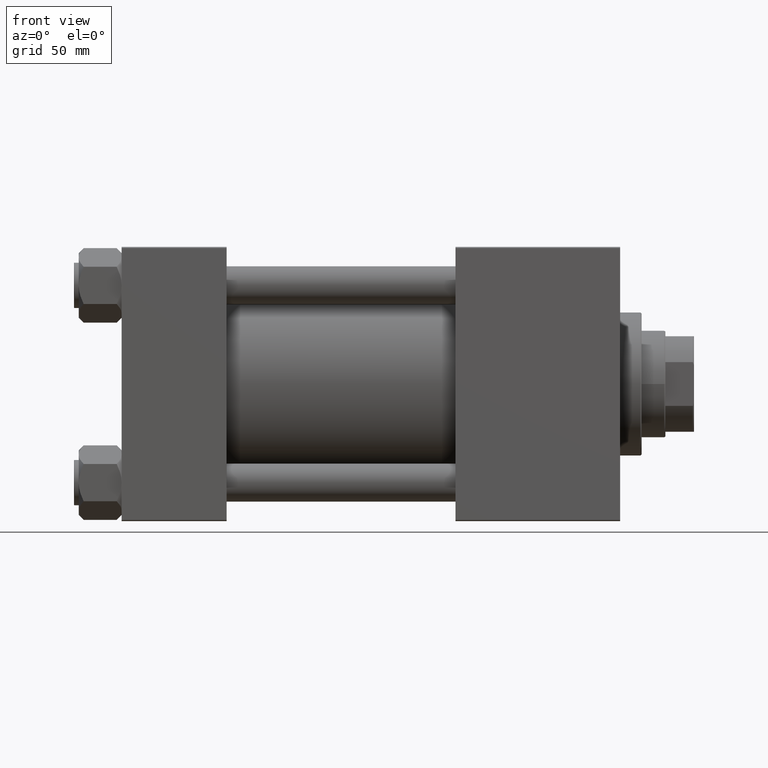
[diagram: clean part render]
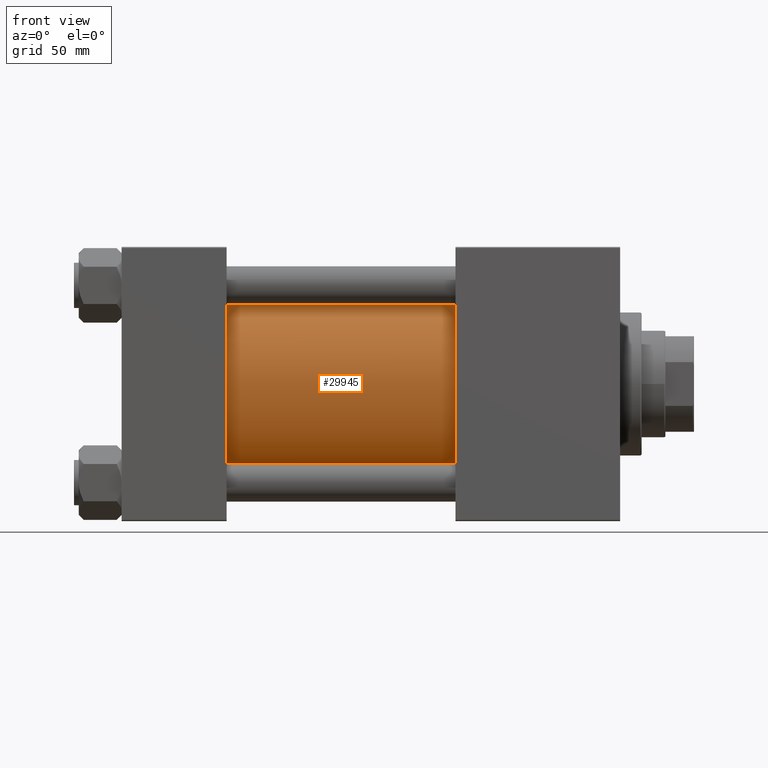
[diagram: same view with one face highlighted and labeled with its STEP entity id]
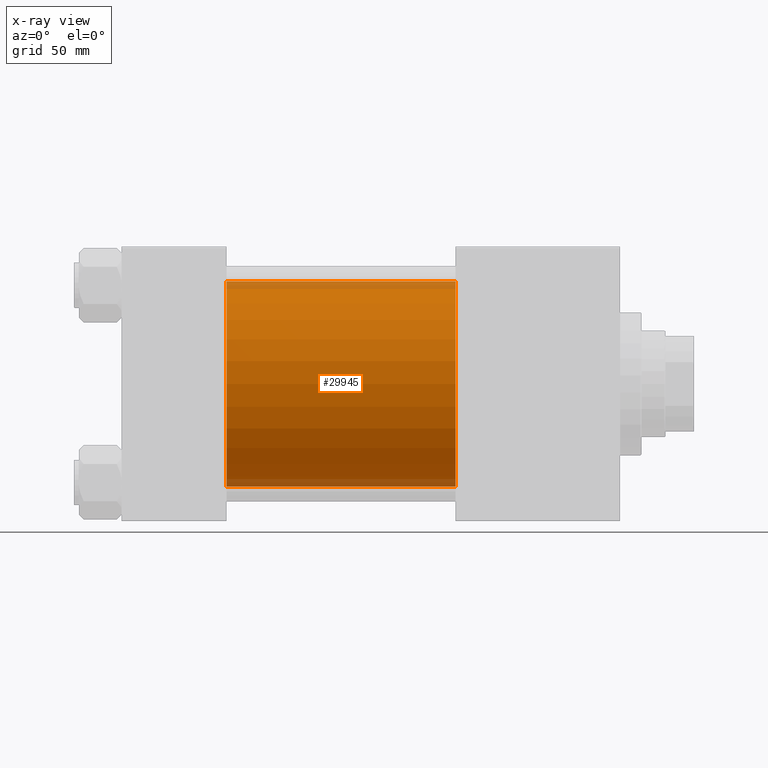
[diagram: x-ray of the same camera — body ghosted, the highlighted face saturated]
A machine part, front view. The second image highlights one B-rep face of the part: STEP entity #29945.
The next image is the same camera in x-ray: the body ghosted, the highlighted face saturated — about 7% of this face is hidden behind the body in this view.
In plain terms, the highlighted cylindrical surface (partial cylindrical patch) has radius 43 mm, axis along (-1, -0, -0).
Its self-contained STEP definition (entity closure, byte-faithful):
#337 = VERTEX_POINT ( 'NONE', #17467 ) ;
#2370 = CARTESIAN_POINT ( 'NONE',  ( 140.0000000000000000, -2.602085213965210642E-15, 0.000000000000000000 ) ) ;
#2681 = CIRCLE ( 'NONE', #10859, 43.00000000000000000 ) ;
#2826 = AXIS2_PLACEMENT_3D ( 'NONE', #31763, #48455, #40748 ) ;
#4589 = VERTEX_POINT ( 'NONE', #19703 ) ;
#5355 = DIRECTION ( 'NONE',  ( 0.000000000000000000, 0.000000000000000000, -1.000000000000000000 ) ) ;
#5594 = ORIENTED_EDGE ( 'NONE', *, *, #19114, .F. ) ;
#8502 = EDGE_LOOP ( 'NONE', ( #13936, #5594, #22169, #49236 ) ) ;
#10859 = AXIS2_PLACEMENT_3D ( 'NONE', #28735, #44407, #5355 ) ;
#12552 = VECTOR ( 'NONE', #23396, 1000.000000000000000 ) ;
#13165 = VERTEX_POINT ( 'NONE', #49854 ) ;
#13936 = ORIENTED_EDGE ( 'NONE', *, *, #24819, .F. ) ;
#16398 = CARTESIAN_POINT ( 'NONE',  ( 140.0000000000000000, -2.602085213965210642E-15, 43.00000000000000000 ) ) ;
#17467 = CARTESIAN_POINT ( 'NONE',  ( 140.0000000000000000, -2.602085213965210642E-15, 43.00000000000000000 ) ) ;
#18038 = DIRECTION ( 'NONE',  ( -1.000000000000000000, -0.000000000000000000, -0.000000000000000000 ) ) ;
#19114 = EDGE_CURVE ( 'NONE', #337, #44113, #2681, .T. ) ;
#19535 = LINE ( 'NONE', #32094, #12552 ) ;
#19703 = CARTESIAN_POINT ( 'NONE',  ( 44.00000000000000000, -2.602085213965210642E-15, 43.00000000000000000 ) ) ;
#22152 = DIRECTION ( 'NONE',  ( 0.000000000000000000, 0.000000000000000000, 1.000000000000000000 ) ) ;
#22169 = ORIENTED_EDGE ( 'NONE', *, *, #33207, .T. ) ;
#23396 = DIRECTION ( 'NONE',  ( -1.000000000000000000, -0.000000000000000000, -0.000000000000000000 ) ) ;
#23885 = CARTESIAN_POINT ( 'NONE',  ( 140.0000000000000000, 2.663896022368408223E-15, -43.00000000000000000 ) ) ;
#24819 = EDGE_CURVE ( 'NONE', #44113, #13165, #19535, .T. ) ;
#26630 = EDGE_CURVE ( 'NONE', #4589, #13165, #33985, .T. ) ;
#28735 = CARTESIAN_POINT ( 'NONE',  ( 140.0000000000000000, -2.602085213965210642E-15, 0.000000000000000000 ) ) ;
#29594 = FACE_OUTER_BOUND ( 'NONE', #8502, .T. ) ;
#29945 = ADVANCED_FACE ( 'NONE', ( #29594 ), #45274, .T. ) ;
#31763 = CARTESIAN_POINT ( 'NONE',  ( 44.00000000000000000, -2.602085213965210642E-15, 0.000000000000000000 ) ) ;
#32067 = DIRECTION ( 'NONE',  ( -1.000000000000000000, -0.000000000000000000, -0.000000000000000000 ) ) ;
#32094 = CARTESIAN_POINT ( 'NONE',  ( 140.0000000000000000, 2.663896022368408223E-15, -43.00000000000000000 ) ) ;
#33207 = EDGE_CURVE ( 'NONE', #337, #4589, #40285, .T. ) ;
#33985 = CIRCLE ( 'NONE', #2826, 43.00000000000000000 ) ;
#36538 = AXIS2_PLACEMENT_3D ( 'NONE', #2370, #18038, #22152 ) ;
#40285 = LINE ( 'NONE', #16398, #44889 ) ;
#40748 = DIRECTION ( 'NONE',  ( 0.000000000000000000, 0.000000000000000000, 1.000000000000000000 ) ) ;
#44113 = VERTEX_POINT ( 'NONE', #23885 ) ;
#44407 = DIRECTION ( 'NONE',  ( 1.000000000000000000, 0.000000000000000000, 0.000000000000000000 ) ) ;
#44889 = VECTOR ( 'NONE', #32067, 1000.000000000000000 ) ;
#45274 = CYLINDRICAL_SURFACE ( 'NONE', #36538, 43.00000000000000000 ) ;
#48455 = DIRECTION ( 'NONE',  ( 1.000000000000000000, -0.000000000000000000, 0.000000000000000000 ) ) ;
#49236 = ORIENTED_EDGE ( 'NONE', *, *, #26630, .T. ) ;
#49854 = CARTESIAN_POINT ( 'NONE',  ( 44.00000000000000000, 2.663896022368408223E-15, -43.00000000000000000 ) ) ;